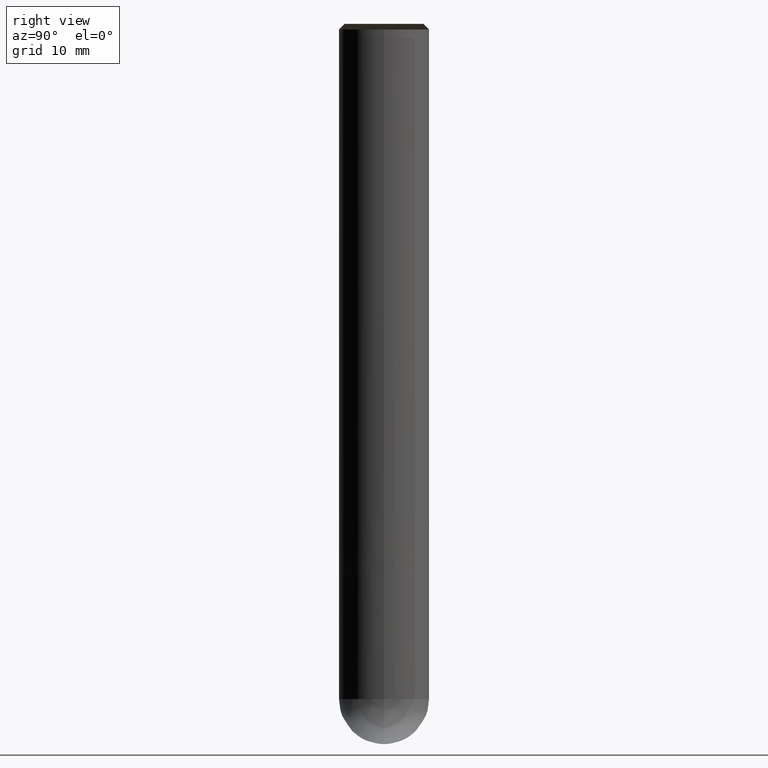
[diagram: clean part render]
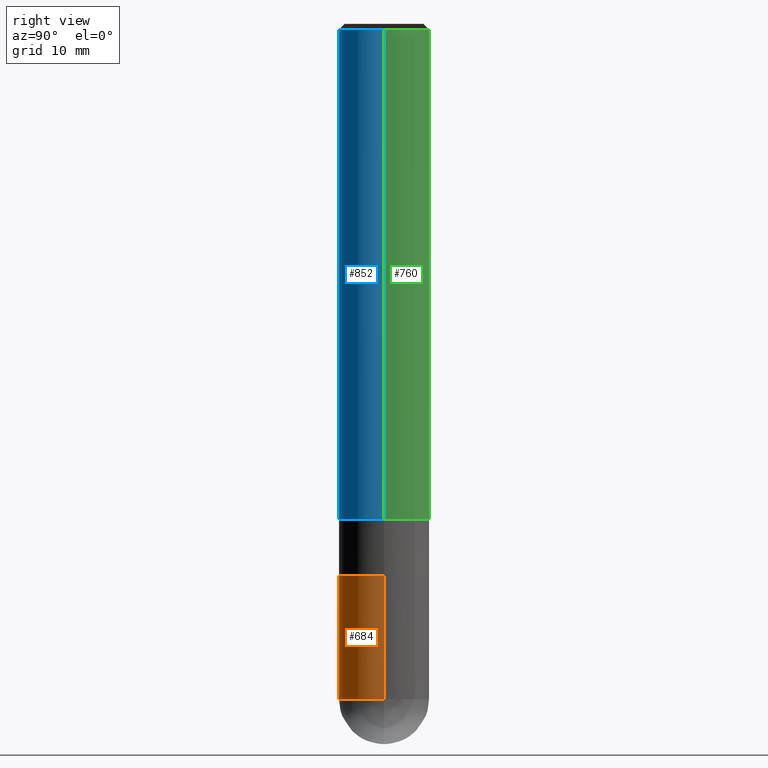
[diagram: same view with three faces highlighted in distinct colors, each labeled with its STEP entity id]
A machine part, right view with three faces highlighted in distinct colors.
Their STEP definitions:

[orange] entity #684 — the highlighted face is a freeform B-spline surface patch.
#546=CARTESIAN_POINT('',(4.0,0.0,-16.0));
#550=CARTESIAN_POINT('',(-4.0,0.0,-16.0));
#551=CARTESIAN_POINT('',(4.0,0.0,-5.0));
#555=CARTESIAN_POINT('',(-4.0,0.0,-5.0));
#560=CARTESIAN_POINT('',(-4.0,-4.0,-16.0));
#561=CARTESIAN_POINT('',(0.0,-4.0,-16.0));
#562=CARTESIAN_POINT('',(4.0,-4.0,-16.0));
#563=CARTESIAN_POINT('',(-4.0,-4.0,-5.0));
#564=CARTESIAN_POINT('',(0.0,-4.0,-5.0));
#565=CARTESIAN_POINT('',(4.0,-4.0,-5.0));
#665=(
BOUNDED_SURFACE()
B_SPLINE_SURFACE(1,2,(
(#550,#560,#561,#562,#546),
(#555,#563,#564,#565,#551)
), .UNSPECIFIED.,.F.,.F.,.F.)
B_SPLINE_SURFACE_WITH_KNOTS((2,2),(3,2,3),(
0.0,1.0),(
0.0,0.5,1.0), .UNSPECIFIED.)
GEOMETRIC_REPRESENTATION_ITEM()
RATIONAL_B_SPLINE_SURFACE(((1.0,0.707106781187,1.0,0.707106781187,1.0),
(1.0,0.707106781187,1.0,0.707106781187,1.0)
))
REPRESENTATION_ITEM('')
SURFACE()
);
#666=(
BOUNDED_CURVE()
B_SPLINE_CURVE(1,(#555,#550),.UNSPECIFIED.,.F.,.F.)
B_SPLINE_CURVE_WITH_KNOTS((2,2),
(0.0,1.0),.UNSPECIFIED.)
CURVE()
GEOMETRIC_REPRESENTATION_ITEM()
RATIONAL_B_SPLINE_CURVE((1.0,1.0))
REPRESENTATION_ITEM('')
);
#667=(
BOUNDED_CURVE()
B_SPLINE_CURVE(2,(#550,#560,#561,#562,#546),.UNSPECIFIED.,.F.,.F.)
B_SPLINE_CURVE_WITH_KNOTS((3,2,3),
(0.0,0.5,1.0),.UNSPECIFIED.)
CURVE()
GEOMETRIC_REPRESENTATION_ITEM()
RATIONAL_B_SPLINE_CURVE((1.0,0.707106781187,1.0,0.707106781187,1.0))
REPRESENTATION_ITEM('')
);
#668=(
BOUNDED_CURVE()
B_SPLINE_CURVE(1,(#546,#551),.UNSPECIFIED.,.F.,.F.)
B_SPLINE_CURVE_WITH_KNOTS((2,2),
(0.0,1.0),.UNSPECIFIED.)
CURVE()
GEOMETRIC_REPRESENTATION_ITEM()
RATIONAL_B_SPLINE_CURVE((1.0,1.0))
REPRESENTATION_ITEM('')
);
#669=(
BOUNDED_CURVE()
B_SPLINE_CURVE(2,(#551,#565,#564,#563,#555),.UNSPECIFIED.,.F.,.F.)
B_SPLINE_CURVE_WITH_KNOTS((3,2,3),
(0.0,0.5,1.0),.UNSPECIFIED.)
CURVE()
GEOMETRIC_REPRESENTATION_ITEM()
RATIONAL_B_SPLINE_CURVE((1.0,0.707106781187,1.0,0.707106781187,1.0))
REPRESENTATION_ITEM('')
);
#670=VERTEX_POINT('',#546);
#671=VERTEX_POINT('',#550);
#672=VERTEX_POINT('',#551);
#673=VERTEX_POINT('',#555);
#674=EDGE_CURVE('',#673,#671,#666,.T.);
#675=EDGE_CURVE('',#671,#670,#667,.T.);
#676=EDGE_CURVE('',#670,#672,#668,.T.);
#677=EDGE_CURVE('',#672,#673,#669,.T.);
#678=ORIENTED_EDGE('',*,*,#674,.T.);
#679=ORIENTED_EDGE('',*,*,#675,.T.);
#680=ORIENTED_EDGE('',*,*,#676,.T.);
#681=ORIENTED_EDGE('',*,*,#677,.T.);
#682=EDGE_LOOP('',(#678,#679,#680,#681));
#683=FACE_OUTER_BOUND('',#682,.T.);
#684=ADVANCED_FACE('',(#683),#665,.T.);

[blue] entity #852 — the highlighted face is a freeform B-spline surface patch.
#566=CARTESIAN_POINT('',(4.0,0.0,0.0));
#570=CARTESIAN_POINT('',(-4.0,0.0,0.0));
#571=CARTESIAN_POINT('',(4.0,0.0,43.5));
#575=CARTESIAN_POINT('',(-4.0,0.0,43.5));
#582=CARTESIAN_POINT('',(-4.0,-4.0,0.0));
#583=CARTESIAN_POINT('',(0.0,-4.0,0.0));
#584=CARTESIAN_POINT('',(4.0,-4.0,0.0));
#585=CARTESIAN_POINT('',(-4.0,-4.0,43.5));
#586=CARTESIAN_POINT('',(0.0,-4.0,43.5));
#587=CARTESIAN_POINT('',(4.0,-4.0,43.5));
#833=(
BOUNDED_SURFACE()
B_SPLINE_SURFACE(1,2,(
(#570,#582,#583,#584,#566),
(#575,#585,#586,#587,#571)
), .UNSPECIFIED.,.F.,.F.,.F.)
B_SPLINE_SURFACE_WITH_KNOTS((2,2),(3,2,3),(
0.0,1.0),(
0.0,0.5,1.0), .UNSPECIFIED.)
GEOMETRIC_REPRESENTATION_ITEM()
RATIONAL_B_SPLINE_SURFACE(((1.0,0.707106781187,1.0,0.707106781187,1.0),
(1.0,0.707106781187,1.0,0.707106781187,1.0)
))
REPRESENTATION_ITEM('')
SURFACE()
);
#834=(
BOUNDED_CURVE()
B_SPLINE_CURVE(1,(#575,#570),.UNSPECIFIED.,.F.,.F.)
B_SPLINE_CURVE_WITH_KNOTS((2,2),
(0.0,1.0),.UNSPECIFIED.)
CURVE()
GEOMETRIC_REPRESENTATION_ITEM()
RATIONAL_B_SPLINE_CURVE((1.0,1.0))
REPRESENTATION_ITEM('')
);
#835=(
BOUNDED_CURVE()
B_SPLINE_CURVE(2,(#570,#582,#583,#584,#566),.UNSPECIFIED.,.F.,.F.)
B_SPLINE_CURVE_WITH_KNOTS((3,2,3),
(0.0,0.5,1.0),.UNSPECIFIED.)
CURVE()
GEOMETRIC_REPRESENTATION_ITEM()
RATIONAL_B_SPLINE_CURVE((1.0,0.707106781187,1.0,0.707106781187,1.0))
REPRESENTATION_ITEM('')
);
#836=(
BOUNDED_CURVE()
B_SPLINE_CURVE(1,(#566,#571),.UNSPECIFIED.,.F.,.F.)
B_SPLINE_CURVE_WITH_KNOTS((2,2),
(0.0,1.0),.UNSPECIFIED.)
CURVE()
GEOMETRIC_REPRESENTATION_ITEM()
RATIONAL_B_SPLINE_CURVE((1.0,1.0))
REPRESENTATION_ITEM('')
);
#837=(
BOUNDED_CURVE()
B_SPLINE_CURVE(2,(#571,#587,#586,#585,#575),.UNSPECIFIED.,.F.,.F.)
B_SPLINE_CURVE_WITH_KNOTS((3,2,3),
(0.0,0.5,1.0),.UNSPECIFIED.)
CURVE()
GEOMETRIC_REPRESENTATION_ITEM()
RATIONAL_B_SPLINE_CURVE((1.0,0.707106781187,1.0,0.707106781187,1.0))
REPRESENTATION_ITEM('')
);
#838=VERTEX_POINT('',#566);
#839=VERTEX_POINT('',#570);
#840=VERTEX_POINT('',#571);
#841=VERTEX_POINT('',#575);
#842=EDGE_CURVE('',#841,#839,#834,.T.);
#843=EDGE_CURVE('',#839,#838,#835,.T.);
#844=EDGE_CURVE('',#838,#840,#836,.T.);
#845=EDGE_CURVE('',#840,#841,#837,.T.);
#846=ORIENTED_EDGE('',*,*,#842,.T.);
#847=ORIENTED_EDGE('',*,*,#843,.T.);
#848=ORIENTED_EDGE('',*,*,#844,.T.);
#849=ORIENTED_EDGE('',*,*,#845,.T.);
#850=EDGE_LOOP('',(#846,#847,#848,#849));
#851=FACE_OUTER_BOUND('',#850,.T.);
#852=ADVANCED_FACE('',(#851),#833,.T.);

[green] entity #760 — the highlighted face is a freeform B-spline surface patch.
#566=CARTESIAN_POINT('',(4.0,0.0,0.0));
#567=CARTESIAN_POINT('',(4.0,4.0,0.0));
#568=CARTESIAN_POINT('',(0.0,4.0,0.0));
#569=CARTESIAN_POINT('',(-4.0,4.0,0.0));
#570=CARTESIAN_POINT('',(-4.0,0.0,0.0));
#571=CARTESIAN_POINT('',(4.0,0.0,43.5));
#572=CARTESIAN_POINT('',(4.0,4.0,43.5));
#573=CARTESIAN_POINT('',(0.0,4.0,43.5));
#574=CARTESIAN_POINT('',(-4.0,4.0,43.5));
#575=CARTESIAN_POINT('',(-4.0,0.0,43.5));
#741=(
BOUNDED_SURFACE()
B_SPLINE_SURFACE(1,2,(
(#566,#567,#568,#569,#570),
(#571,#572,#573,#574,#575)
), .UNSPECIFIED.,.F.,.F.,.F.)
B_SPLINE_SURFACE_WITH_KNOTS((2,2),(3,2,3),(
0.0,1.0),(
0.0,0.5,1.0), .UNSPECIFIED.)
GEOMETRIC_REPRESENTATION_ITEM()
RATIONAL_B_SPLINE_SURFACE(((1.0,0.707106781187,1.0,0.707106781187,1.0),
(1.0,0.707106781187,1.0,0.707106781187,1.0)
))
REPRESENTATION_ITEM('')
SURFACE()
);
#742=(
BOUNDED_CURVE()
B_SPLINE_CURVE(2,(#571,#572,#573,#574,#575),.UNSPECIFIED.,.F.,.F.)
B_SPLINE_CURVE_WITH_KNOTS((3,2,3),
(0.0,0.5,1.0),.UNSPECIFIED.)
CURVE()
GEOMETRIC_REPRESENTATION_ITEM()
RATIONAL_B_SPLINE_CURVE((1.0,0.707106781187,1.0,0.707106781187,1.0))
REPRESENTATION_ITEM('')
);
#743=(
BOUNDED_CURVE()
B_SPLINE_CURVE(1,(#575,#570),.UNSPECIFIED.,.F.,.F.)
B_SPLINE_CURVE_WITH_KNOTS((2,2),
(0.0,1.0),.UNSPECIFIED.)
CURVE()
GEOMETRIC_REPRESENTATION_ITEM()
RATIONAL_B_SPLINE_CURVE((1.0,1.0))
REPRESENTATION_ITEM('')
);
#744=(
BOUNDED_CURVE()
B_SPLINE_CURVE(2,(#570,#569,#568,#567,#566),.UNSPECIFIED.,.F.,.F.)
B_SPLINE_CURVE_WITH_KNOTS((3,2,3),
(0.0,0.5,1.0),.UNSPECIFIED.)
CURVE()
GEOMETRIC_REPRESENTATION_ITEM()
RATIONAL_B_SPLINE_CURVE((1.0,0.707106781187,1.0,0.707106781187,1.0))
REPRESENTATION_ITEM('')
);
#745=(
BOUNDED_CURVE()
B_SPLINE_CURVE(1,(#566,#571),.UNSPECIFIED.,.F.,.F.)
B_SPLINE_CURVE_WITH_KNOTS((2,2),
(0.0,1.0),.UNSPECIFIED.)
CURVE()
GEOMETRIC_REPRESENTATION_ITEM()
RATIONAL_B_SPLINE_CURVE((1.0,1.0))
REPRESENTATION_ITEM('')
);
#746=VERTEX_POINT('',#566);
#747=VERTEX_POINT('',#570);
#748=VERTEX_POINT('',#571);
#749=VERTEX_POINT('',#575);
#750=EDGE_CURVE('',#748,#749,#742,.T.);
#751=EDGE_CURVE('',#749,#747,#743,.T.);
#752=EDGE_CURVE('',#747,#746,#744,.T.);
#753=EDGE_CURVE('',#746,#748,#745,.T.);
#754=ORIENTED_EDGE('',*,*,#750,.T.);
#755=ORIENTED_EDGE('',*,*,#751,.T.);
#756=ORIENTED_EDGE('',*,*,#752,.T.);
#757=ORIENTED_EDGE('',*,*,#753,.T.);
#758=EDGE_LOOP('',(#754,#755,#756,#757));
#759=FACE_OUTER_BOUND('',#758,.T.);
#760=ADVANCED_FACE('',(#759),#741,.T.);